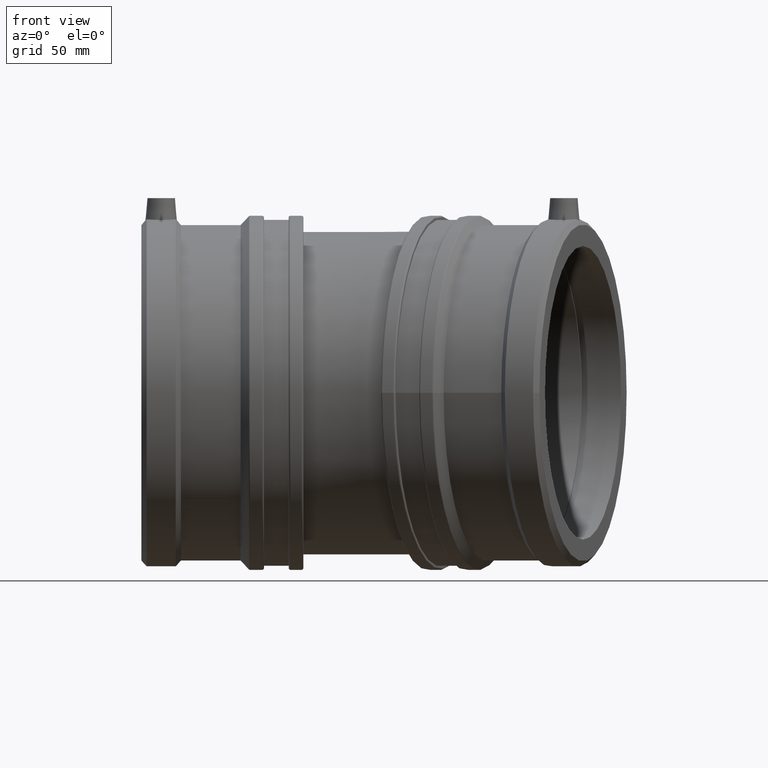
[diagram: clean part render]
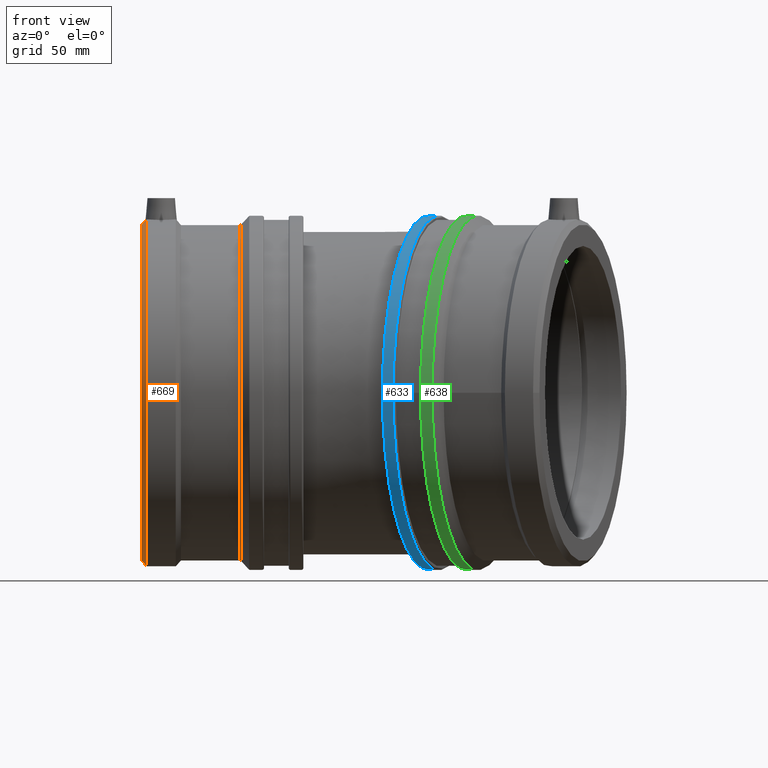
[diagram: same view with three faces highlighted in distinct colors, each labeled with its STEP entity id]
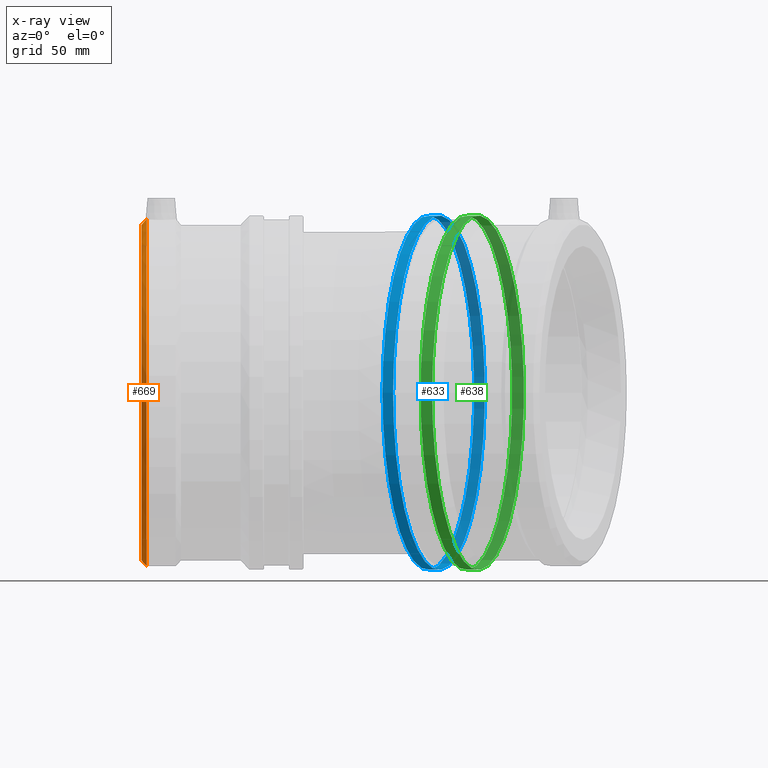
[diagram: x-ray of the same camera — body ghosted, the three highlighted faces saturated]
A machine part, front view with three faces highlighted in distinct colors.
The next image is the same camera in x-ray (body ghosted, the three faces saturated) — at least one of them is partly hidden behind the body in this view.
Their STEP definitions:

[orange] entity #669 — the highlighted conical surface has half-angle 45 deg.
#25=CONICAL_SURFACE('',#779,93.15145,45.);
#45=B_SPLINE_CURVE_WITH_KNOTS('',3,(#1460,#1461,#1462,#1463,#1464,#1465,
#1466,#1467,#1468,#1469),.UNSPECIFIED.,.F.,.F.,(4,2,2,2,4),(1.52262874966015,
1.5491401834437,1.8305254754882,2.1119107675327,2.13842220131625),
 .UNSPECIFIED.);
#116=FACE_BOUND('',#279,.T.);
#173=FACE_OUTER_BOUND('',#278,.T.);
#278=EDGE_LOOP('',(#583,#584));
#279=EDGE_LOOP('',(#585));
#338=CIRCLE('',#778,91.7329);
#339=CIRCLE('',#780,94.57);
#380=VERTEX_POINT('',#1458);
#381=VERTEX_POINT('',#1459);
#399=VERTEX_POINT('',#1583);
#443=EDGE_CURVE('',#380,#381,#45,.T.);
#464=EDGE_CURVE('',#399,#399,#338,.T.);
#465=EDGE_CURVE('',#380,#381,#339,.T.);
#583=ORIENTED_EDGE('',*,*,#443,.T.);
#584=ORIENTED_EDGE('',*,*,#465,.F.);
#585=ORIENTED_EDGE('',*,*,#464,.T.);
#669=ADVANCED_FACE('',(#173,#116),#25,.T.);
#778=AXIS2_PLACEMENT_3D('',#1584,#991,#992);
#779=AXIS2_PLACEMENT_3D('',#1585,#993,#994);
#780=AXIS2_PLACEMENT_3D('',#1586,#995,#996);
#991=DIRECTION('center_axis',(1.,0.,0.));
#992=DIRECTION('ref_axis',(0.,0.,-1.));
#993=DIRECTION('center_axis',(1.,0.,0.));
#994=DIRECTION('ref_axis',(0.,1.,0.));
#995=DIRECTION('center_axis',(1.,0.,0.));
#996=DIRECTION('ref_axis',(0.,0.,-1.));
#1458=CARTESIAN_POINT('',(-119.509063669192,-3.0385690580232,94.5211722212522));
#1459=CARTESIAN_POINT('',(-119.509063669192,3.0385690580232,94.5211722212522));
#1460=CARTESIAN_POINT('Ctrl Pts',(-119.509063669192,-3.03856905802324,94.5211722212522));
#1461=CARTESIAN_POINT('Ctrl Pts',(-119.542996820367,-2.95754229350685,94.48982630565));
#1462=CARTESIAN_POINT('Ctrl Pts',(-119.575709310625,-2.87561751524124,94.4596289811919));
#1463=CARTESIAN_POINT('Ctrl Pts',(-119.940642687051,-1.91471310888487,94.1229557412159));
#1464=CARTESIAN_POINT('Ctrl Pts',(-120.119571617788,-0.93795097348166,93.9594920514041));
#1465=CARTESIAN_POINT('Ctrl Pts',(-120.119571617788,0.93795097348166,93.9594920514041));
#1466=CARTESIAN_POINT('Ctrl Pts',(-119.940642687051,1.91471310888487,94.122955741216));
#1467=CARTESIAN_POINT('Ctrl Pts',(-119.575709310625,2.87561751524124,94.4596289811919));
#1468=CARTESIAN_POINT('Ctrl Pts',(-119.542996820367,2.95754229350686,94.48982630565));
#1469=CARTESIAN_POINT('Ctrl Pts',(-119.509063669192,3.03856905802324,94.5211722212522));
#1583=CARTESIAN_POINT('',(-122.346163669192,91.7329,0.));
#1584=CARTESIAN_POINT('Origin',(-122.346163669192,0.,0.));
#1585=CARTESIAN_POINT('Origin',(-120.927613669192,0.,0.));
#1586=CARTESIAN_POINT('Origin',(-119.509063669192,0.,0.));

[blue] entity #633 — the highlighted cylindrical surface (bore or boss wall) has radius 96.5 mm, axis along (-0.9659, 0.2588, 0).
#83=FACE_BOUND('',#210,.T.);
#137=FACE_OUTER_BOUND('',#209,.T.);
#209=EDGE_LOOP('',(#503));
#210=EDGE_LOOP('',(#504));
#304=CIRCLE('',#708,96.5);
#306=CIRCLE('',#711,96.5);
#362=VERTEX_POINT('',#1399);
#364=VERTEX_POINT('',#1404);
#424=EDGE_CURVE('',#362,#362,#304,.T.);
#426=EDGE_CURVE('',#364,#364,#306,.T.);
#503=ORIENTED_EDGE('',*,*,#426,.F.);
#504=ORIENTED_EDGE('',*,*,#424,.F.);
#604=CYLINDRICAL_SURFACE('',#710,96.5);
#633=ADVANCED_FACE('',(#137,#83),#604,.T.);
#708=AXIS2_PLACEMENT_3D('',#1400,#851,#852);
#710=AXIS2_PLACEMENT_3D('',#1403,#855,#856);
#711=AXIS2_PLACEMENT_3D('',#1405,#857,#858);
#851=DIRECTION('center_axis',(-0.965925826289068,0.258819045102521,0.));
#852=DIRECTION('ref_axis',(0.258819045102521,0.965925826289068,1.83697019872103E-16));
#855=DIRECTION('center_axis',(-0.965925826289068,0.258819045102521,0.));
#856=DIRECTION('ref_axis',(-0.258819045102521,-0.965925826289068,0.));
#857=DIRECTION('center_axis',(0.965925826289068,-0.258819045102521,0.));
#858=DIRECTION('ref_axis',(0.258819045102521,0.965925826289068,1.83697019872103E-16));
#1399=CARTESIAN_POINT('',(8.93874192674208,-102.299280090194,-5.90892080588598E-15));
#1400=CARTESIAN_POINT('Origin',(33.9147797791354,-9.0874378532987,0.));
#1403=CARTESIAN_POINT('Origin',(36.8222165162654,-9.86648317905729,0.));
#1404=CARTESIAN_POINT('',(14.7536154010023,-103.857370741711,-2.95446040294299E-14));
#1405=CARTESIAN_POINT('Origin',(39.7296532533955,-10.6455285048159,0.));

[green] entity #638 — the highlighted cylindrical surface (bore or boss wall) has radius 96.5 mm, axis along (-0.9659, 0.2588, 0).
#88=FACE_BOUND('',#220,.T.);
#142=FACE_OUTER_BOUND('',#219,.T.);
#219=EDGE_LOOP('',(#513));
#220=EDGE_LOOP('',(#514));
#309=CIRCLE('',#718,96.5);
#311=CIRCLE('',#721,96.5);
#367=VERTEX_POINT('',#1414);
#369=VERTEX_POINT('',#1419);
#429=EDGE_CURVE('',#367,#367,#309,.T.);
#431=EDGE_CURVE('',#369,#369,#311,.T.);
#513=ORIENTED_EDGE('',*,*,#431,.F.);
#514=ORIENTED_EDGE('',*,*,#429,.F.);
#605=CYLINDRICAL_SURFACE('',#720,96.5);
#638=ADVANCED_FACE('',(#142,#88),#605,.T.);
#718=AXIS2_PLACEMENT_3D('',#1415,#871,#872);
#720=AXIS2_PLACEMENT_3D('',#1418,#875,#876);
#721=AXIS2_PLACEMENT_3D('',#1420,#877,#878);
#871=DIRECTION('center_axis',(-0.965925826289068,0.258819045102521,0.));
#872=DIRECTION('ref_axis',(0.258819045102521,0.965925826289068,1.83697019872103E-16));
#875=DIRECTION('center_axis',(-0.965925826289068,0.258819045102521,0.));
#876=DIRECTION('ref_axis',(-0.258819045102521,-0.965925826289068,0.));
#877=DIRECTION('center_axis',(0.965925826289068,-0.258819045102521,0.));
#878=DIRECTION('ref_axis',(0.258819045102521,0.965925826289068,1.83697019872103E-16));
#1414=CARTESIAN_POINT('',(29.6578509006426,-107.850948607643,-5.90892080588598E-15));
#1415=CARTESIAN_POINT('Origin',(54.6338887530359,-14.6391063707478,0.));
#1418=CARTESIAN_POINT('Origin',(57.541325490166,-15.4181516965064,0.));
#1419=CARTESIAN_POINT('',(36.0187467049887,-109.555345501556,-2.95446040294299E-14));
#1420=CARTESIAN_POINT('Origin',(60.994784557382,-16.3435032646608,0.));